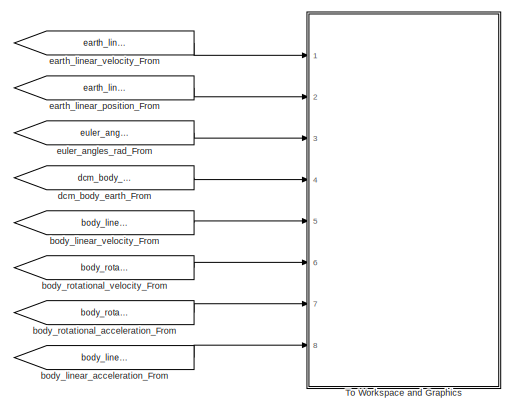
[diagram: root canvas - part 1/3, right side, full height]
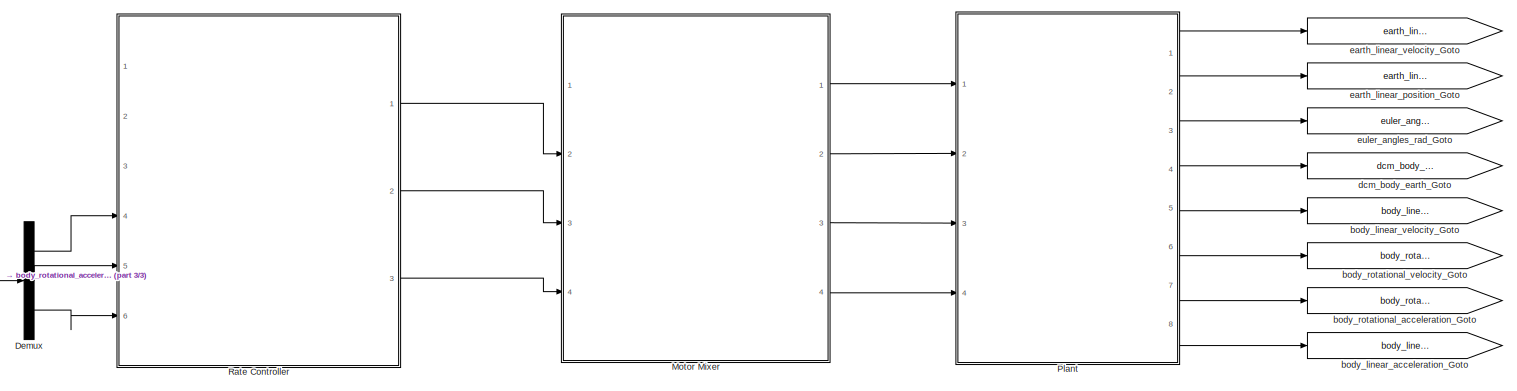
[diagram: root canvas - part 2/3, center side, full height]
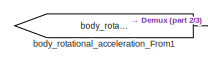
[diagram: root canvas - part 3/3, bottom left region]
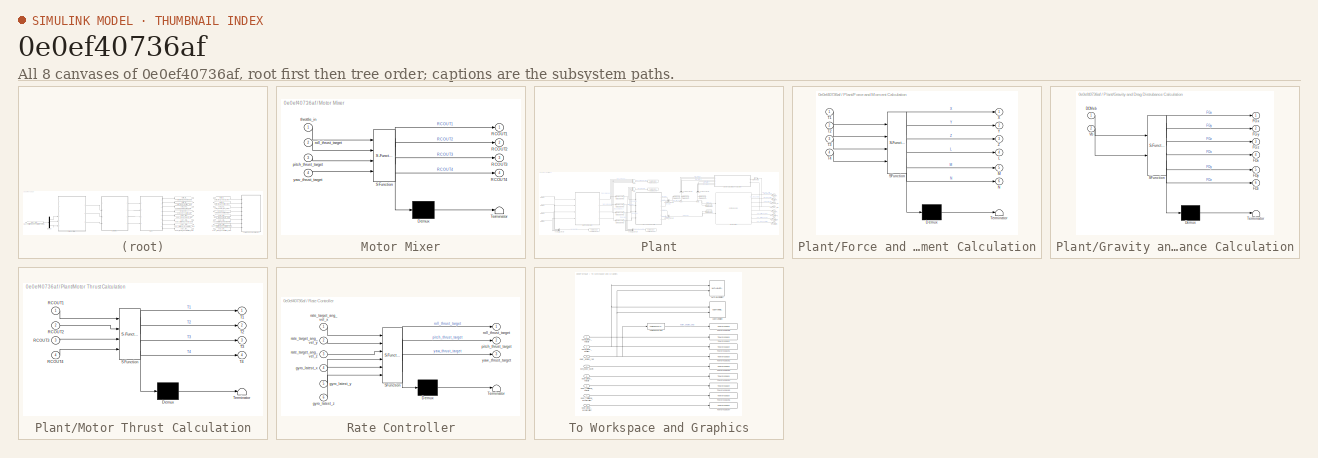
[diagram: thumbnail index - all 8 canvases of the model, root first then tree order]
MODEL slx_0e0ef40736af
KIND model
CONFIG AbsTol = auto
CONFIG MaxStep = auto
CONFIG MinStep = auto
CONFIG RelTol = 1e-3
CONFIG SampleTimeConstraint = Unconstrained
CONFIG Solver = VariableStepAuto
CONFIG SolverMode = Auto
CONFIG SolverName = VariableStepAuto
CONFIG StartTime = Seconds(firstPoint,1)
CONFIG StopTime = Seconds(lastPoint,1)
BLOCK [Demux] Demux
  DisplayOption = bar
  Outputs = 3
  Ports = [1, 3]
BLOCK [SubSystem] Motor Mixer
  ErrorFcn = Stateflow.Translate.translate
  PermitHierarchicalResolution = ExplicitOnly
  Ports = [4, 4]
  RequestExecContextInheritance = off
  SFBlockType = MATLAB Function
  TreatAsAtomicUnit = on
  Variant = off
BLOCK [Demux] Motor Mixer/ Demux 
  Outputs = 1
  Ports = [1, 1]
BLOCK [S-Function] Motor Mixer/ SFunction 
  EnableBusSupport = on
  FunctionName = sf_sfun
  PortCounts = [4 5]
  Ports = [4, 5]
  SFunctionDeploymentMode = off
  Tag = Stateflow S-Function Phoenix 5
BLOCK [Terminator] Motor Mixer/ Terminator 
BLOCK [Outport] Motor Mixer/RCOUT1
  IconDisplay = Port number
BLOCK [Outport] Motor Mixer/RCOUT2
  IconDisplay = Port number
  Port = 2
BLOCK [Outport] Motor Mixer/RCOUT3
  IconDisplay = Port number
  Port = 3
BLOCK [Outport] Motor Mixer/RCOUT4
  IconDisplay = Port number
  Port = 4
BLOCK [Inport] Motor Mixer/pitch_thrust_target
  IconDisplay = Port number
  Port = 3
BLOCK [Inport] Motor Mixer/roll_thrust_target
  IconDisplay = Port number
  Port = 2
BLOCK [Inport] Motor Mixer/throttle_in
  IconDisplay = Port number
BLOCK [Inport] Motor Mixer/yaw_thrust_target
  IconDisplay = Port number
  Port = 4
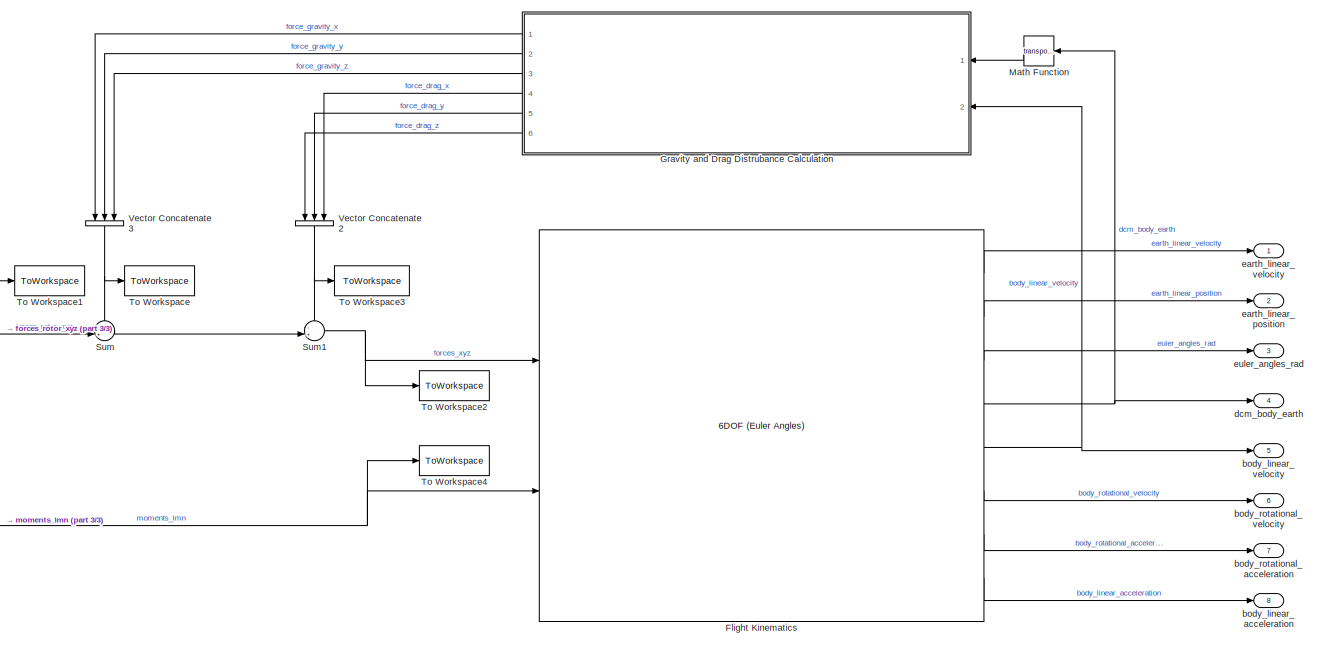
[diagram: Plant - part 1/3, right side, full height]
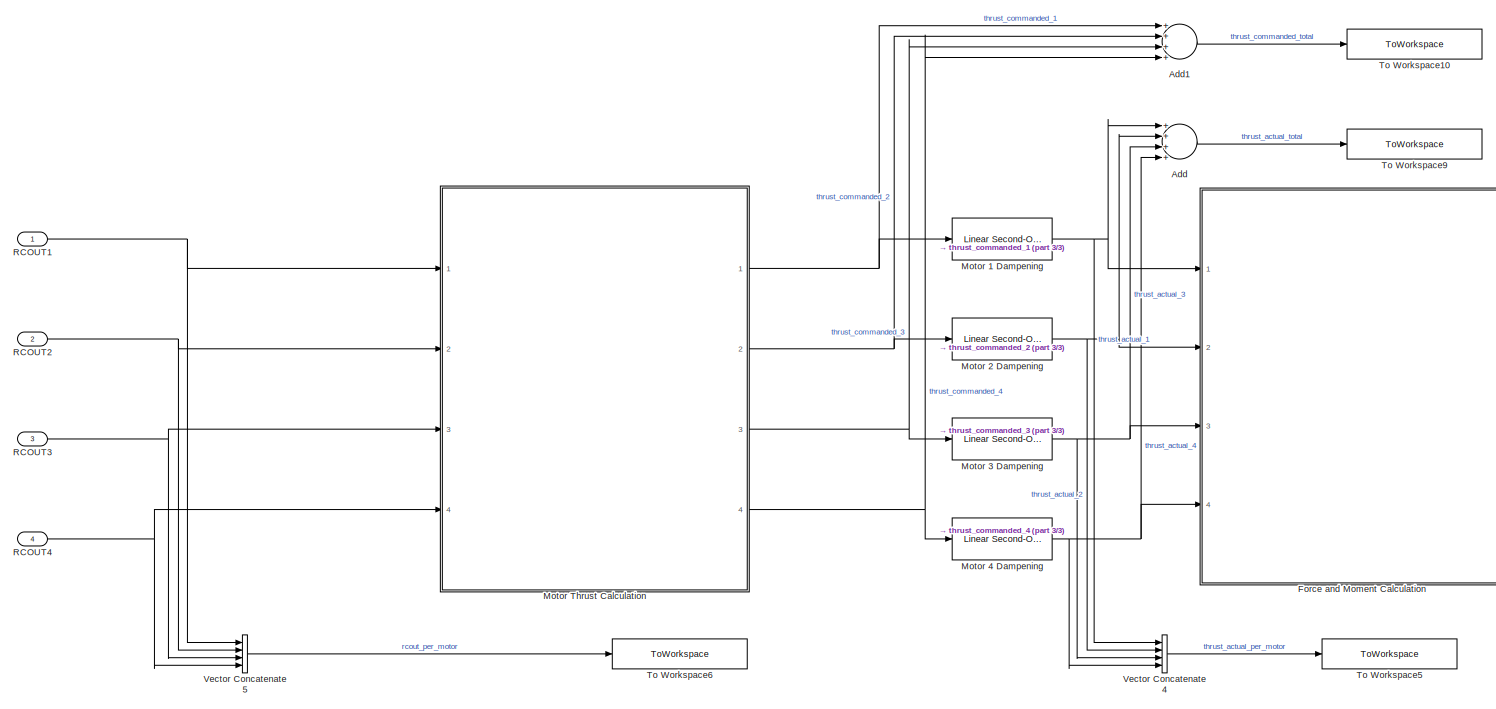
[diagram: Plant - part 2/3, left side, full height]
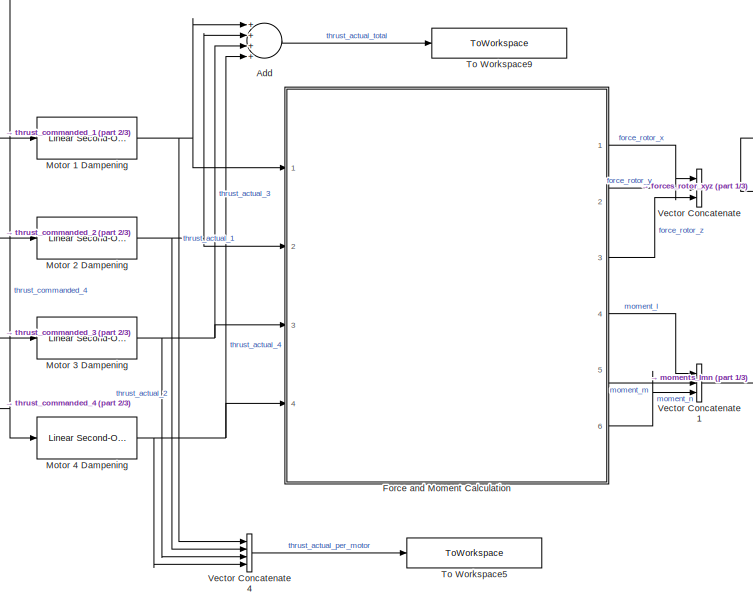
[diagram: Plant - part 3/3, center side, full height]
BLOCK [SubSystem] Plant
  Ports = [4, 8]
  RequestExecContextInheritance = off
  Variant = off
BLOCK [Sum] Plant/Add
  InputSameDT = off
  Inputs = ++++
  OutDataTypeStr = Inherit: Inherit via internal rule
  Ports = [4, 1]
  SaturateOnIntegerOverflow = off
BLOCK [Sum] Plant/Add1
  InputSameDT = off
  Inputs = ++++
  OutDataTypeStr = Inherit: Inherit via internal rule
  Ports = [4, 1]
  SaturateOnIntegerOverflow = off
BLOCK [Reference] Plant/Flight Kinematics  REF=aerolib6dof2/6DOF (Euler Angles)
  Ports = [2, 8]
  SourceBlock = aerolib6dof2/6DOF (Euler Angles)
  SourceType = 6DOF EoM (Body Axis)
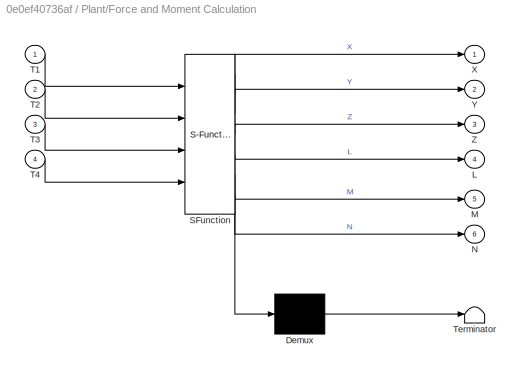
BLOCK [SubSystem] Plant/Force and Moment Calculation
  ErrorFcn = Stateflow.Translate.translate
  PermitHierarchicalResolution = ExplicitOnly
  Ports = [4, 6]
  RequestExecContextInheritance = off
  SFBlockType = MATLAB Function
  TreatAsAtomicUnit = on
  Variant = off
BLOCK [Demux] Plant/Force and Moment Calculation/ Demux 
  Outputs = 1
  Ports = [1, 1]
BLOCK [S-Function] Plant/Force and Moment Calculation/ SFunction 
  EnableBusSupport = on
  FunctionName = sf_sfun
  PortCounts = [4 7]
  Ports = [4, 7]
  SFunctionDeploymentMode = off
  Tag = Stateflow S-Function Phoenix 2
BLOCK [Terminator] Plant/Force and Moment Calculation/ Terminator 
BLOCK [Outport] Plant/Force and Moment Calculation/L
  IconDisplay = Port number
  Port = 4
BLOCK [Outport] Plant/Force and Moment Calculation/M
  IconDisplay = Port number
  Port = 5
BLOCK [Outport] Plant/Force and Moment Calculation/N
  IconDisplay = Port number
  Port = 6
BLOCK [Inport] Plant/Force and Moment Calculation/T1
  IconDisplay = Port number
BLOCK [Inport] Plant/Force and Moment Calculation/T2
  IconDisplay = Port number
  Port = 2
BLOCK [Inport] Plant/Force and Moment Calculation/T3
  IconDisplay = Port number
  Port = 3
BLOCK [Inport] Plant/Force and Moment Calculation/T4
  IconDisplay = Port number
  Port = 4
BLOCK [Outport] Plant/Force and Moment Calculation/X
  IconDisplay = Port number
BLOCK [Outport] Plant/Force and Moment Calculation/Y
  IconDisplay = Port number
  Port = 2
BLOCK [Outport] Plant/Force and Moment Calculation/Z
  IconDisplay = Port number
  Port = 3
BLOCK [SubSystem] Plant/Gravity and Drag Distrubance Calculation
  ErrorFcn = Stateflow.Translate.translate
  PermitHierarchicalResolution = ExplicitOnly
  Ports = [2, 6]
  RequestExecContextInheritance = off
  SFBlockType = MATLAB Function
  TreatAsAtomicUnit = on
  Variant = off
BLOCK [Demux] Plant/Gravity and Drag Distrubance Calculation/ Demux 
  Outputs = 1
  Ports = [1, 1]
BLOCK [S-Function] Plant/Gravity and Drag Distrubance Calculation/ SFunction 
  EnableBusSupport = on
  FunctionName = sf_sfun
  PortCounts = [2 7]
  Ports = [2, 7]
  SFunctionDeploymentMode = off
  Tag = Stateflow S-Function Phoenix 3
BLOCK [Terminator] Plant/Gravity and Drag Distrubance Calculation/ Terminator 
BLOCK [Inport] Plant/Gravity and Drag Distrubance Calculation/DCMeb
  IconDisplay = Port number
BLOCK [Outport] Plant/Gravity and Drag Distrubance Calculation/FDx
  IconDisplay = Port number
  Port = 4
BLOCK [Outport] Plant/Gravity and Drag Distrubance Calculation/FDy
  IconDisplay = Port number
  Port = 5
BLOCK [Outport] Plant/Gravity and Drag Distrubance Calculation/FDz
  IconDisplay = Port number
  Port = 6
BLOCK [Outport] Plant/Gravity and Drag Distrubance Calculation/FGx
  IconDisplay = Port number
BLOCK [Outport] Plant/Gravity and Drag Distrubance Calculation/FGy
  IconDisplay = Port number
  Port = 2
BLOCK [Outport] Plant/Gravity and Drag Distrubance Calculation/FGz
  IconDisplay = Port number
  Port = 3
BLOCK [Inport] Plant/Gravity and Drag Distrubance Calculation/Vb
  IconDisplay = Port number
  Port = 2
BLOCK [Math] Plant/Math Function
  Operator = transpose
  Ports = [1, 1]
BLOCK [Reference] Plant/Motor 1 Dampening  REF=aerolibactuator/Linear Second-Order Actuator
  Ports = [1, 1]
  SourceBlock = aerolibactuator/Linear Second-Order Actuator
  SourceType = LinearSecondOrderActuator
BLOCK [Reference] Plant/Motor 2 Dampening  REF=aerolibactuator/Linear Second-Order Actuator
  Ports = [1, 1]
  SourceBlock = aerolibactuator/Linear Second-Order Actuator
  SourceType = LinearSecondOrderActuator
BLOCK [Reference] Plant/Motor 3 Dampening  REF=aerolibactuator/Linear Second-Order Actuator
  Ports = [1, 1]
  SourceBlock = aerolibactuator/Linear Second-Order Actuator
  SourceType = LinearSecondOrderActuator
BLOCK [Reference] Plant/Motor 4 Dampening  REF=aerolibactuator/Linear Second-Order Actuator
  Ports = [1, 1]
  SourceBlock = aerolibactuator/Linear Second-Order Actuator
  SourceType = LinearSecondOrderActuator
BLOCK [SubSystem] Plant/Motor Thrust Calculation
  ErrorFcn = Stateflow.Translate.translate
  PermitHierarchicalResolution = ExplicitOnly
  Ports = [4, 4]
  RequestExecContextInheritance = off
  SFBlockType = MATLAB Function
  TreatAsAtomicUnit = on
  Variant = off
BLOCK [Demux] Plant/Motor Thrust Calculation/ Demux 
  Outputs = 1
  Ports = [1, 1]
BLOCK [S-Function] Plant/Motor Thrust Calculation/ SFunction 
  EnableBusSupport = on
  FunctionName = sf_sfun
  PortCounts = [4 5]
  Ports = [4, 5]
  SFunctionDeploymentMode = off
  Tag = Stateflow S-Function Phoenix 1
BLOCK [Terminator] Plant/Motor Thrust Calculation/ Terminator 
BLOCK [Inport] Plant/Motor Thrust Calculation/RCOUT1
  IconDisplay = Port number
BLOCK [Inport] Plant/Motor Thrust Calculation/RCOUT2
  IconDisplay = Port number
  Port = 2
BLOCK [Inport] Plant/Motor Thrust Calculation/RCOUT3
  IconDisplay = Port number
  Port = 3
BLOCK [Inport] Plant/Motor Thrust Calculation/RCOUT4
  IconDisplay = Port number
  Port = 4
BLOCK [Outport] Plant/Motor Thrust Calculation/T1
  IconDisplay = Port number
BLOCK [Outport] Plant/Motor Thrust Calculation/T2
  IconDisplay = Port number
  Port = 2
BLOCK [Outport] Plant/Motor Thrust Calculation/T3
  IconDisplay = Port number
  Port = 3
BLOCK [Outport] Plant/Motor Thrust Calculation/T4
  IconDisplay = Port number
  Port = 4
BLOCK [Inport] Plant/RCOUT1
  IconDisplay = Port number
BLOCK [Inport] Plant/RCOUT2
  IconDisplay = Port number
  Port = 2
BLOCK [Inport] Plant/RCOUT3
  IconDisplay = Port number
  Port = 3
BLOCK [Inport] Plant/RCOUT4
  IconDisplay = Port number
  Port = 4
BLOCK [Sum] Plant/Sum
  IconShape = round
  InputSameDT = off
  Inputs = -+|
  OutDataTypeStr = Inherit: Inherit via internal rule
  Ports = [2, 1]
  SaturateOnIntegerOverflow = off
BLOCK [Sum] Plant/Sum1
  IconShape = round
  InputSameDT = off
  Inputs = -+|
  OutDataTypeStr = Inherit: Inherit via internal rule
  Ports = [2, 1]
  SaturateOnIntegerOverflow = off
BLOCK [ToWorkspace] Plant/To Workspace
  FixptAsFi = on
  MaxDataPoints = inf
  Ports = [1]
  SampleTime = -1
  Save2DSignal = 3-D array (concatenate along third dimension)
  VariableName = force_gravity
BLOCK [ToWorkspace] Plant/To Workspace1
  FixptAsFi = on
  MaxDataPoints = inf
  Ports = [1]
  SampleTime = -1
  Save2DSignal = 3-D array (concatenate along third dimension)
  VariableName = force_rotor
BLOCK [ToWorkspace] Plant/To Workspace10
  FixptAsFi = on
  MaxDataPoints = inf
  Ports = [1]
  SampleTime = -1
  Save2DSignal = 3-D array (concatenate along third dimension)
  VariableName = thrust_commanded_total
BLOCK [ToWorkspace] Plant/To Workspace2
  FixptAsFi = on
  MaxDataPoints = inf
  Ports = [1]
  SampleTime = -1
  Save2DSignal = 3-D array (concatenate along third dimension)
  VariableName = force_total
BLOCK [ToWorkspace] Plant/To Workspace3
  FixptAsFi = on
  MaxDataPoints = inf
  Ports = [1]
  SampleTime = -1
  Save2DSignal = 3-D array (concatenate along third dimension)
  VariableName = force_drag
BLOCK [ToWorkspace] Plant/To Workspace4
  FixptAsFi = on
  MaxDataPoints = inf
  Ports = [1]
  SampleTime = -1
  Save2DSignal = 3-D array (concatenate along third dimension)
  VariableName = moments_lmn
BLOCK [ToWorkspace] Plant/To Workspace5
  FixptAsFi = on
  MaxDataPoints = inf
  Ports = [1]
  SampleTime = -1
  Save2DSignal = 3-D array (concatenate along third dimension)
  VariableName = thrust_actual_per_motor
BLOCK [ToWorkspace] Plant/To Workspace6
  FixptAsFi = on
  MaxDataPoints = inf
  Ports = [1]
  SampleTime = -1
  Save2DSignal = 3-D array (concatenate along third dimension)
  VariableName = rcout_per_motor
BLOCK [ToWorkspace] Plant/To Workspace9
  FixptAsFi = on
  MaxDataPoints = inf
  Ports = [1]
  SampleTime = -1
  Save2DSignal = 3-D array (concatenate along third dimension)
  VariableName = thrust_actual_total
BLOCK [Concatenate] Plant/Vector Concatenate
  NumInputs = 3
  Ports = [3, 1]
BLOCK [Concatenate] Plant/Vector Concatenate1
  NumInputs = 3
  Ports = [3, 1]
BLOCK [Concatenate] Plant/Vector Concatenate2
  NumInputs = 3
  Ports = [3, 1]
BLOCK [Concatenate] Plant/Vector Concatenate3
  NumInputs = 3
  Ports = [3, 1]
BLOCK [Concatenate] Plant/Vector Concatenate4
  NumInputs = 4
  Ports = [4, 1]
BLOCK [Concatenate] Plant/Vector Concatenate5
  NumInputs = 4
  Ports = [4, 1]
BLOCK [Outport] Plant/body_linear_acceleration
  IconDisplay = Port number
  Port = 8
BLOCK [Outport] Plant/body_linear_velocity
  IconDisplay = Port number
  Port = 5
BLOCK [Outport] Plant/body_rotational_acceleration
  IconDisplay = Port number
  Port = 7
BLOCK [Outport] Plant/body_rotational_velocity
  IconDisplay = Port number
  Port = 6
BLOCK [Outport] Plant/dcm_body_earth
  IconDisplay = Port number
  Port = 4
BLOCK [Outport] Plant/earth_linear_position
  IconDisplay = Port number
  Port = 2
BLOCK [Outport] Plant/earth_linear_velocity
  IconDisplay = Port number
BLOCK [Outport] Plant/euler_angles_rad
  IconDisplay = Port number
  Port = 3
BLOCK [SubSystem] Rate Controller
  ErrorFcn = Stateflow.Translate.translate
  PermitHierarchicalResolution = ExplicitOnly
  Ports = [6, 3]
  RequestExecContextInheritance = off
  SFBlockType = MATLAB Function
  TreatAsAtomicUnit = on
  Variant = off
BLOCK [Demux] Rate Controller/ Demux 
  Outputs = 1
  Ports = [1, 1]
BLOCK [S-Function] Rate Controller/ SFunction 
  EnableBusSupport = on
  FunctionName = sf_sfun
  PortCounts = [6 4]
  Ports = [6, 4]
  SFunctionDeploymentMode = off
  Tag = Stateflow S-Function Phoenix 4
BLOCK [Terminator] Rate Controller/ Terminator 
BLOCK [Inport] Rate Controller/gyro_latest_x
  IconDisplay = Port number
  Port = 4
BLOCK [Inport] Rate Controller/gyro_latest_y
  IconDisplay = Port number
  Port = 5
BLOCK [Inport] Rate Controller/gyro_latest_z
  IconDisplay = Port number
  Port = 6
BLOCK [Outport] Rate Controller/pitch_thrust_target
  IconDisplay = Port number
  Port = 2
BLOCK [Inport] Rate Controller/rate_target_ang_vel_x
  IconDisplay = Port number
BLOCK [Inport] Rate Controller/rate_target_ang_vel_y
  IconDisplay = Port number
  Port = 2
BLOCK [Inport] Rate Controller/rate_target_ang_vel_z
  IconDisplay = Port number
  Port = 3
BLOCK [Outport] Rate Controller/roll_thrust_target
  IconDisplay = Port number
BLOCK [Outport] Rate Controller/yaw_thrust_target
  IconDisplay = Port number
  Port = 3
BLOCK [SubSystem] To Workspace and Graphics
  Ports = [8]
  RequestExecContextInheritance = off
  Variant = off
BLOCK [Reference] To Workspace and Graphics/6DoF Animation  REF=aerolibanim/6DoF Animation
  Ports = [2]
  SourceBlock = aerolibanim/6DoF Animation
  SourceType = 6DoF_Animation
BLOCK [Reference] To Workspace and Graphics/Angle Conversion  REF=aerolibconvert2/Angle Conversion
  Ports = [1, 1]
  SourceBlock = aerolibconvert2/Angle Conversion
  SourceType = Angle Conversion
BLOCK [Reference] To Workspace and Graphics/MATLAB Animation  REF=aerolibanim/MATLAB
Animation
  Ports = [2]
  SourceBlock = aerolibanim/MATLAB\nAnimation
  SourceType = AeroMATLABAnimation
  Tag = Matlab Animation 6 DOF
BLOCK [ToWorkspace] To Workspace and Graphics/To Workspace
  FixptAsFi = on
  MaxDataPoints = inf
  Ports = [1]
  SampleTime = -1
  Save2DSignal = 3-D array (concatenate along third dimension)
  VariableName = earth_linear_velocity
BLOCK [ToWorkspace] To Workspace and Graphics/To Workspace1
  FixptAsFi = on
  MaxDataPoints = inf
  Ports = [1]
  SampleTime = -1
  Save2DSignal = 3-D array (concatenate along third dimension)
  VariableName = earth_linear_position
BLOCK [ToWorkspace] To Workspace and Graphics/To Workspace2
  FixptAsFi = on
  MaxDataPoints = inf
  Ports = [1]
  SampleTime = -1
  Save2DSignal = 3-D array (concatenate along third dimension)
  VariableName = euler_angles_rad
BLOCK [ToWorkspace] To Workspace and Graphics/To Workspace3
  FixptAsFi = on
  MaxDataPoints = inf
  Ports = [1]
  SampleTime = -1
  Save2DSignal = 3-D array (concatenate along third dimension)
  VariableName = dcm_body_earth
BLOCK [ToWorkspace] To Workspace and Graphics/To Workspace4
  FixptAsFi = on
  MaxDataPoints = inf
  Ports = [1]
  SampleTime = -1
  Save2DSignal = 3-D array (concatenate along third dimension)
  VariableName = body_linear_velocity
BLOCK [ToWorkspace] To Workspace and Graphics/To Workspace5
  FixptAsFi = on
  MaxDataPoints = inf
  Ports = [1]
  SampleTime = -1
  Save2DSignal = 3-D array (concatenate along third dimension)
  VariableName = body_rotational_velocity
BLOCK [ToWorkspace] To Workspace and Graphics/To Workspace6
  FixptAsFi = on
  MaxDataPoints = inf
  Ports = [1]
  SampleTime = -1
  Save2DSignal = 3-D array (concatenate along third dimension)
  VariableName = body_rotational_acceleration
BLOCK [ToWorkspace] To Workspace and Graphics/To Workspace7
  FixptAsFi = on
  MaxDataPoints = inf
  Ports = [1]
  SampleTime = -1
  Save2DSignal = 3-D array (concatenate along third dimension)
  VariableName = body_linear_acceleration
BLOCK [ToWorkspace] To Workspace and Graphics/To Workspace8
  FixptAsFi = on
  MaxDataPoints = inf
  Ports = [1]
  SampleTime = -1
  Save2DSignal = 3-D array (concatenate along third dimension)
  VariableName = euler_angles_deg
BLOCK [Inport] To Workspace and Graphics/body_linear_acceleration
  IconDisplay = Port number
  Port = 8
BLOCK [Inport] To Workspace and Graphics/body_linear_velocity
  IconDisplay = Port number
  Port = 5
BLOCK [Inport] To Workspace and Graphics/body_rotational_acceleration
  IconDisplay = Port number
  Port = 7
BLOCK [Inport] To Workspace and Graphics/body_rotational_velocity
  IconDisplay = Port number
  Port = 6
BLOCK [Inport] To Workspace and Graphics/dcm_body_earth
  IconDisplay = Port number
  Port = 4
BLOCK [Inport] To Workspace and Graphics/earth_linear_position
  IconDisplay = Port number
  Port = 2
BLOCK [Inport] To Workspace and Graphics/earth_linear_velocity
  IconDisplay = Port number
BLOCK [Inport] To Workspace and Graphics/euler_angles_rad
  IconDisplay = Port number
  Port = 3
BLOCK [From] body_linear_acceleration_From
  GotoTag = body_linear_acceleration
  TagVisibility = global
BLOCK [Goto] body_linear_acceleration_Goto
  GotoTag = body_linear_acceleration
  TagVisibility = global
BLOCK [From] body_linear_velocity_From
  GotoTag = body_linear_velocity
  TagVisibility = global
BLOCK [Goto] body_linear_velocity_Goto
  GotoTag = body_linear_velocity
  TagVisibility = global
BLOCK [From] body_rotational_acceleration_From
  GotoTag = body_rotational_acceleration
  TagVisibility = global
BLOCK [From] body_rotational_acceleration_From1
  GotoTag = body_rotational_acceleration
  TagVisibility = global
BLOCK [Goto] body_rotational_acceleration_Goto
  GotoTag = body_rotational_acceleration
  TagVisibility = global
BLOCK [From] body_rotational_velocity_From
  GotoTag = body_rotational_velocity
  TagVisibility = global
BLOCK [Goto] body_rotational_velocity_Goto
  GotoTag = body_rotational_velocity
  TagVisibility = global
BLOCK [From] dcm_body_earth_From
  GotoTag = dcm_body_earth
  TagVisibility = global
BLOCK [Goto] dcm_body_earth_Goto
  GotoTag = dcm_body_earth
  TagVisibility = global
BLOCK [From] earth_linear_position_From
  GotoTag = earth_linear_position
  TagVisibility = global
BLOCK [Goto] earth_linear_position_Goto
  GotoTag = earth_linear_position
  TagVisibility = global
BLOCK [From] earth_linear_velocity_From
  GotoTag = earth_linear_velocity
  TagVisibility = global
BLOCK [Goto] earth_linear_velocity_Goto
  GotoTag = earth_linear_velocity
  TagVisibility = global
BLOCK [From] euler_angles_rad_From
  GotoTag = euler_angles_rad
  TagVisibility = global
BLOCK [Goto] euler_angles_rad_Goto
  GotoTag = euler_angles_rad
  TagVisibility = global
LINE Demux:1 -> Rate Controller:4
LINE Demux:2 -> Rate Controller:5
LINE Demux:3 -> Rate Controller:6
LINE Motor Mixer:1 -> Plant:1
LINE Motor Mixer:2 -> Plant:2
LINE Motor Mixer:3 -> Plant:3
LINE Motor Mixer:4 -> Plant:4
LINE Plant/Add1:1 -> Plant/To Workspace10:1
LINE Plant/Add:1 -> Plant/To Workspace9:1
LINE Plant/Flight Kinematics:1 -> Plant/earth_linear_velocity:1
LINE Plant/Flight Kinematics:2 -> Plant/earth_linear_position:1
LINE Plant/Flight Kinematics:3 -> Plant/euler_angles_rad:1
NET Plant/Flight Kinematics:4 -> Plant/Math Function:1, Plant/dcm_body_earth:1
NET Plant/Flight Kinematics:5 -> Plant/Gravity and Drag Distrubance Calculation:2, Plant/body_linear_velocity:1
LINE Plant/Flight Kinematics:6 -> Plant/body_rotational_velocity:1
LINE Plant/Flight Kinematics:7 -> Plant/body_rotational_acceleration:1
LINE Plant/Flight Kinematics:8 -> Plant/body_linear_acceleration:1
LINE Plant/Force and Moment Calculation:1 -> Plant/Vector Concatenate:1
LINE Plant/Force and Moment Calculation:2 -> Plant/Vector Concatenate:2
LINE Plant/Force and Moment Calculation:3 -> Plant/Vector Concatenate:3
LINE Plant/Force and Moment Calculation:4 -> Plant/Vector Concatenate1:1
LINE Plant/Force and Moment Calculation:5 -> Plant/Vector Concatenate1:2
LINE Plant/Force and Moment Calculation:6 -> Plant/Vector Concatenate1:3
LINE Plant/Gravity and Drag Distrubance Calculation:1 -> Plant/Vector Concatenate3:1
LINE Plant/Gravity and Drag Distrubance Calculation:2 -> Plant/Vector Concatenate3:2
LINE Plant/Gravity and Drag Distrubance Calculation:3 -> Plant/Vector Concatenate3:3
LINE Plant/Gravity and Drag Distrubance Calculation:4 -> Plant/Vector Concatenate2:3
LINE Plant/Gravity and Drag Distrubance Calculation:5 -> Plant/Vector Concatenate2:2
LINE Plant/Gravity and Drag Distrubance Calculation:6 -> Plant/Vector Concatenate2:1
LINE Plant/Math Function:1 -> Plant/Gravity and Drag Distrubance Calculation:1
NET Plant/Motor 1 Dampening:1 -> Plant/Add:1, Plant/Force and Moment Calculation:1, Plant/Vector Concatenate4:1
NET Plant/Motor 2 Dampening:1 -> Plant/Add:2, Plant/Force and Moment Calculation:2, Plant/Vector Concatenate4:2
NET Plant/Motor 3 Dampening:1 -> Plant/Add:3, Plant/Force and Moment Calculation:3, Plant/Vector Concatenate4:3
NET Plant/Motor 4 Dampening:1 -> Plant/Add:4, Plant/Force and Moment Calculation:4, Plant/Vector Concatenate4:4
NET Plant/Motor Thrust Calculation:1 -> Plant/Add1:1, Plant/Motor 1 Dampening:1
NET Plant/Motor Thrust Calculation:2 -> Plant/Add1:2, Plant/Motor 2 Dampening:1
NET Plant/Motor Thrust Calculation:3 -> Plant/Add1:3, Plant/Motor 3 Dampening:1
NET Plant/Motor Thrust Calculation:4 -> Plant/Add1:4, Plant/Motor 4 Dampening:1
NET Plant/RCOUT1:1 -> Plant/Motor Thrust Calculation:1, Plant/Vector Concatenate5:1
NET Plant/RCOUT2:1 -> Plant/Motor Thrust Calculation:2, Plant/Vector Concatenate5:2
NET Plant/RCOUT3:1 -> Plant/Motor Thrust Calculation:3, Plant/Vector Concatenate5:3
NET Plant/RCOUT4:1 -> Plant/Motor Thrust Calculation:4, Plant/Vector Concatenate5:4
NET Plant/Sum1:1 -> Plant/Flight Kinematics:1, Plant/To Workspace2:1
LINE Plant/Sum:1 -> Plant/Sum1:2
NET Plant/Vector Concatenate1:1 -> Plant/Flight Kinematics:2, Plant/To Workspace4:1
NET Plant/Vector Concatenate2:1 -> Plant/Sum1:1, Plant/To Workspace3:1
NET Plant/Vector Concatenate3:1 -> Plant/Sum:1, Plant/To Workspace:1
LINE Plant/Vector Concatenate4:1 -> Plant/To Workspace5:1
LINE Plant/Vector Concatenate5:1 -> Plant/To Workspace6:1
NET Plant/Vector Concatenate:1 -> Plant/Sum:2, Plant/To Workspace1:1
LINE Plant:1 -> earth_linear_velocity_Goto:1
LINE Plant:2 -> earth_linear_position_Goto:1
LINE Plant:3 -> euler_angles_rad_Goto:1
LINE Plant:4 -> dcm_body_earth_Goto:1
LINE Plant:5 -> body_linear_velocity_Goto:1
LINE Plant:6 -> body_rotational_velocity_Goto:1
LINE Plant:7 -> body_rotational_acceleration_Goto:1
LINE Plant:8 -> body_linear_acceleration_Goto:1
LINE Rate Controller:1 -> Motor Mixer:2
LINE Rate Controller:2 -> Motor Mixer:3
LINE Rate Controller:3 -> Motor Mixer:4
LINE To Workspace and Graphics/Angle Conversion:1 -> To Workspace and Graphics/To Workspace8:1
LINE To Workspace and Graphics/body_linear_acceleration:1 -> To Workspace and Graphics/To Workspace7:1
LINE To Workspace and Graphics/body_linear_velocity:1 -> To Workspace and Graphics/To Workspace4:1
LINE To Workspace and Graphics/body_rotational_acceleration:1 -> To Workspace and Graphics/To Workspace6:1
LINE To Workspace and Graphics/body_rotational_velocity:1 -> To Workspace and Graphics/To Workspace5:1
LINE To Workspace and Graphics/dcm_body_earth:1 -> To Workspace and Graphics/To Workspace3:1
NET To Workspace and Graphics/earth_linear_position:1 -> To Workspace and Graphics/6DoF Animation:1, To Workspace and Graphics/MATLAB Animation:1, To Workspace and Graphics/To Workspace1:1
LINE To Workspace and Graphics/earth_linear_velocity:1 -> To Workspace and Graphics/To Workspace:1
NET To Workspace and Graphics/euler_angles_rad:1 -> To Workspace and Graphics/6DoF Animation:2, To Workspace and Graphics/Angle Conversion:1, To Workspace and Graphics/MATLAB Animation:2, To Workspace and Graphics/To Workspace2:1
LINE body_linear_acceleration_From:1 -> To Workspace and Graphics:8
LINE body_linear_velocity_From:1 -> To Workspace and Graphics:5
LINE body_rotational_acceleration_From1:1 -> Demux:1
LINE body_rotational_acceleration_From:1 -> To Workspace and Graphics:7
LINE body_rotational_velocity_From:1 -> To Workspace and Graphics:6
LINE dcm_body_earth_From:1 -> To Workspace and Graphics:4
LINE earth_linear_position_From:1 -> To Workspace and Graphics:2
LINE earth_linear_velocity_From:1 -> To Workspace and Graphics:1
LINE euler_angles_rad_From:1 -> To Workspace and Graphics:3
note: NET lines group one-source signal fan-out (src -> all destinations, sorted); 1:1 wires keep LINE
CHART Plant/Motor Thrust Calculation states=1 transitions=1
  STATE_LABEL 'eML_blk_kernel()'
  STATE_LABEL 'SCRIPT:\nfunction [T1, T2, T3, T4] = motorOutputs(RCOUT1, RCOUT2, RCOUT3, RCOUT4)\n%   RCOUTx = PWM Value out of the Autopilot                (1000us-2000us)\n%   Tx = Thrust value produced by the motor/rotor pair     (N)\n%\n%   1.Calculate Tmax by adding overhead onto hover throttle\n%   2.Map RCOUT values between 0 and 1\n%   3.Multiply unity RCOUT value by Tmax\n\nTmax = 2*(2.2*9.8);                   ...<+1618ch>'
CHART Plant/Force and Moment Calculation states=1 transitions=1
  STATE_LABEL 'eML_blk_kernel()'
  STATE_LABEL 'SCRIPT:\nfunction [X, Y, Z, L, M, N] = forceMomentCalc(T1, T2, T3, T4)\n%T1 = Motor 1 Thrust                (N)\n%T2 = Motor 2 Thrust                (N)\n%T3 = Motor 3 Thrust                (N)\n%T4 = Motor 4 Thrust                (N)\n%X = Force in x axis                (N)\n%Y = Force in y axis                (N)                \n%Z = Force in z axis                (N)\n%L = Rolling moment around x axis ...<+691ch>'
CHART Plant/Gravity and Drag Distrubance Calculation states=1 transitions=1
  STATE_LABEL 'eML_blk_kernel()'
  STATE_LABEL "SCRIPT:\nfunction [FGx, FGy, FGz, FDx, FDy, FDz] = gravityDragCalculation(DCMeb, Vb)\n%   Gravity and Drag Calculations\n%   Inputs\n%   DCMbe = Direct Cosine Matrix, from earth to body\n%   Vb = Linear Velocity, body frame\n%   Outputs\n%   FGa = Force of gravity in the 'a' axis, body frame\n%   FDa = Force of drag in the 'a' axis, body frame\n\n%Gravity Constants\nmass = 2.2;\ngravityForce_earth = [0, 0, (9...<+927ch>"
CHART Rate Controller states=1 transitions=1
  STATE_LABEL 'eML_blk_kernel()'
  STATE_LABEL 'SCRIPT:\nfunction [roll_thrust_target, pitch_thrust_target, yaw_thrust_target]  = rate_controller_run( rate_target_ang_vel_x, rate_target_ang_vel_y, rate_target_ang_vel_z , gyro_latest_x, gyro_latest_y, gyro_latest_z)\n%RATE_CONTROLLER_RUN Summary of this function goes here\n%   Detailed explanation goes here\n\nupdate_throttle_rpy_mix();\n\nroll_thrust_target = rate_target_to_motor_roll(gyro_latest_x, r...<+203ch>'
CHART Motor Mixer states=1 transitions=1
  STATE_LABEL 'eML_blk_kernel()'
  STATE_LABEL 'SCRIPT:\nfunction [RCOUT1, RCOUT2, RCOUT3, RCOUT4 ]  = motor_mixer(throttle_in, roll_thrust_target, pitch_thrust_target, yaw_thrust_target)\n%% Motor Mixer\n\n%\n%   Matlab Implementation of the ArduPilot Motor Mixer\n%   Outputs Motor Commands based on required rate targets\n%\n%   \n    global pwm_min pwm_max spin_min spin_max thrust_rpyt_out\n    % Update throttle filter\n    update_throttle_filter(thrott...<+1033ch>'
